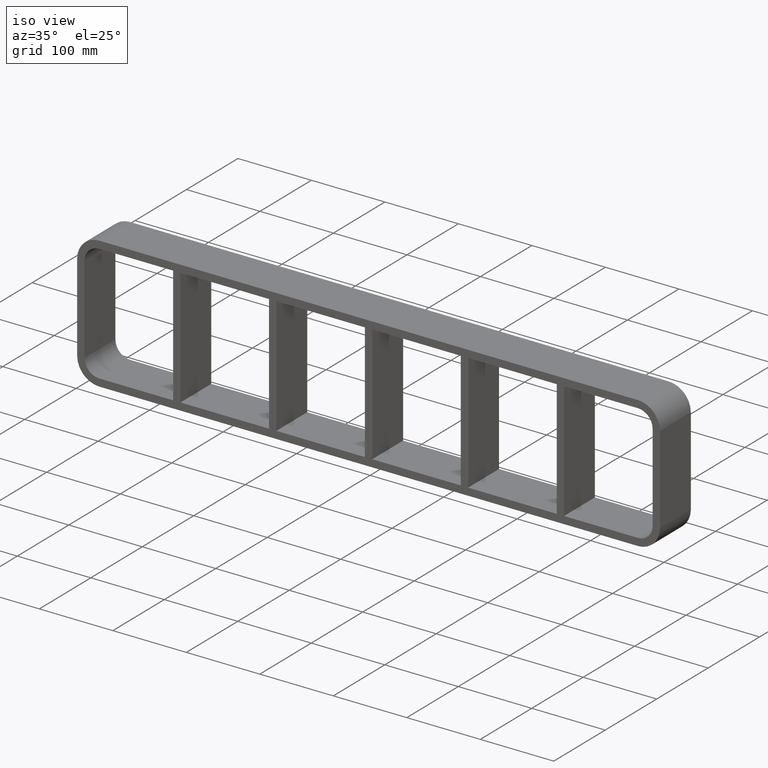
[diagram: clean part render]
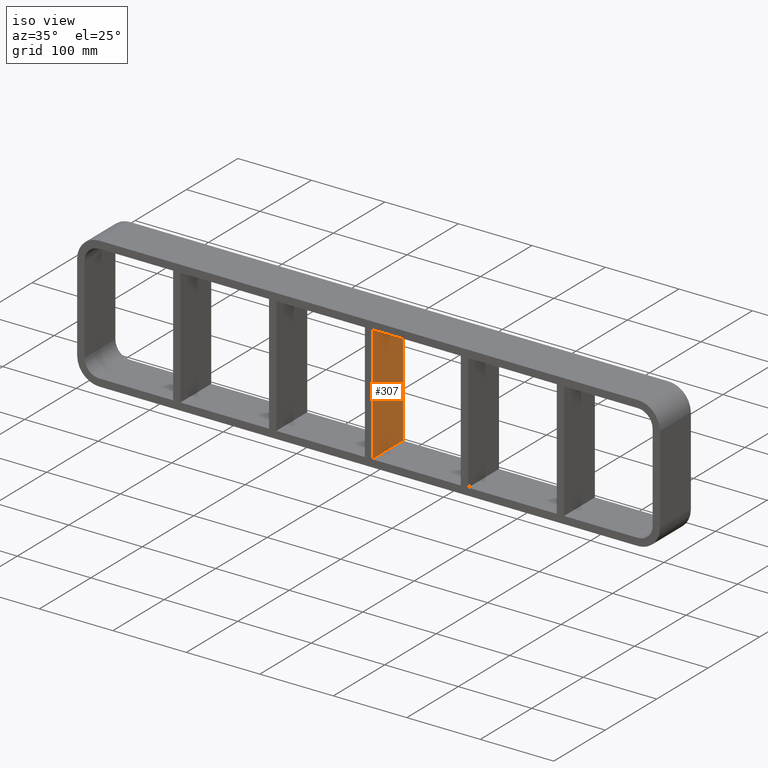
[diagram: same view with one face highlighted and labeled with its STEP entity id]
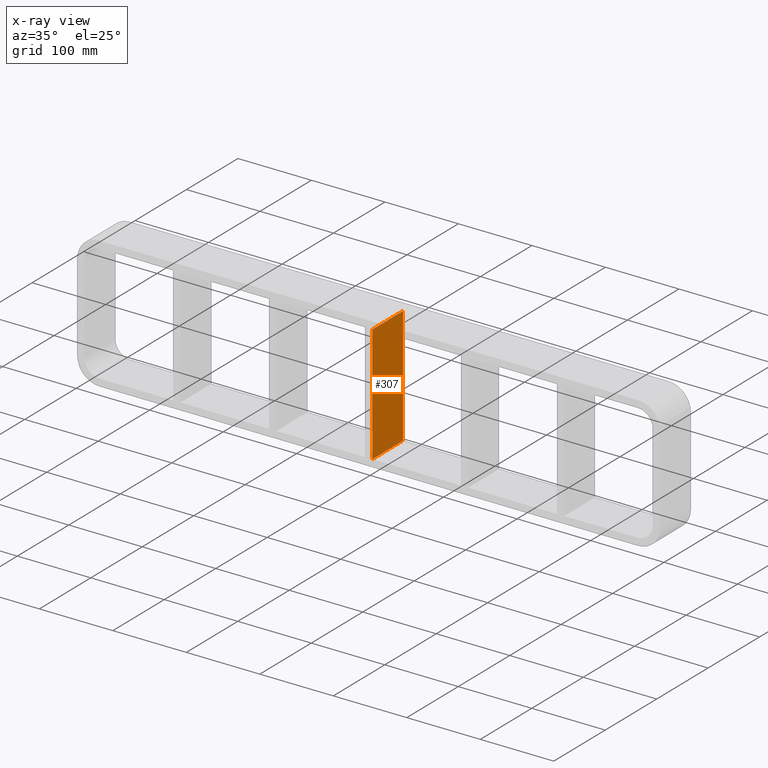
[diagram: x-ray of the same camera — body ghosted, the highlighted face saturated]
A machine part, iso view. The second image highlights one B-rep face of the part: STEP entity #307.
The next image is the same camera in x-ray: the body ghosted, the highlighted face saturated — about 0% of this face is hidden behind the body in this view.
In plain terms, the highlighted planar face has unit normal (1, 0, 0).
Its self-contained STEP definition (entity closure, byte-faithful):
#268=CARTESIAN_POINT('',(4.999999999996376,-3.0,79.750000000000014));
#269=DIRECTION('',(1.0,0.0,0.0));
#270=DIRECTION('',(0.0,0.0,-1.0));
#271=AXIS2_PLACEMENT_3D('',#268,#269,#270);
#272=PLANE('',#271);
#273=CARTESIAN_POINT('',(4.999999999996376,-3.0,79.750000000000014));
#274=VERTEX_POINT('',#273);
#275=CARTESIAN_POINT('',(4.999999999996376,-3.0,-79.749999999984283));
#276=VERTEX_POINT('',#275);
#277=CARTESIAN_POINT('',(4.999999999996376,-3.0,79.750000000000014));
#278=DIRECTION('',(0.0,0.0,-1.0));
#279=VECTOR('',#278,159.49999999998428);
#280=LINE('',#277,#279);
#281=EDGE_CURVE('',#274,#276,#280,.T.);
#282=ORIENTED_EDGE('',*,*,#281,.T.);
#283=CARTESIAN_POINT('',(4.999999999996376,57.0,-79.749999999984283));
#284=VERTEX_POINT('',#283);
#285=CARTESIAN_POINT('',(4.999999999996376,57.000000000000007,-79.750000000000014));
#286=DIRECTION('',(0.0,-1.0,0.0));
#287=VECTOR('',#286,60.000000000000007);
#288=LINE('',#285,#287);
#289=EDGE_CURVE('',#284,#276,#288,.T.);
#290=ORIENTED_EDGE('',*,*,#289,.F.);
#291=CARTESIAN_POINT('',(4.999999999996376,57.0,79.750000000000014));
#292=VERTEX_POINT('',#291);
#293=CARTESIAN_POINT('',(4.999999999996376,57.0,79.750000000000014));
#294=DIRECTION('',(0.0,0.0,-1.0));
#295=VECTOR('',#294,159.49999999998428);
#296=LINE('',#293,#295);
#297=EDGE_CURVE('',#292,#284,#296,.T.);
#298=ORIENTED_EDGE('',*,*,#297,.F.);
#299=CARTESIAN_POINT('',(4.999999999996376,-3.0,79.750000000000014));
#300=DIRECTION('',(0.0,1.0,0.0));
#301=VECTOR('',#300,60.000000000000007);
#302=LINE('',#299,#301);
#303=EDGE_CURVE('',#274,#292,#302,.T.);
#304=ORIENTED_EDGE('',*,*,#303,.F.);
#305=EDGE_LOOP('',(#282,#290,#298,#304));
#306=FACE_OUTER_BOUND('',#305,.T.);
#307=ADVANCED_FACE('',(#306),#272,.T.);